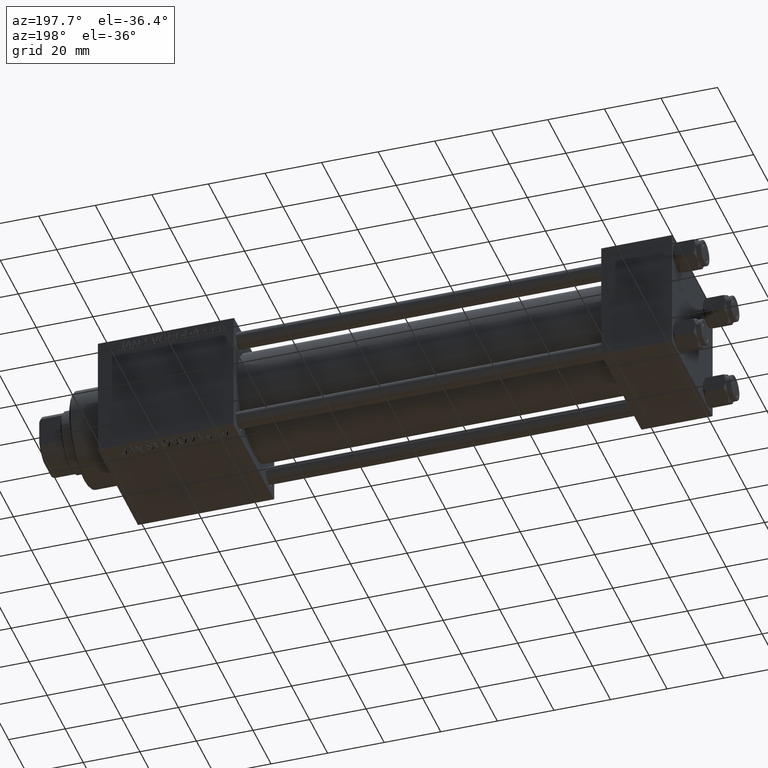
[diagram: clean part render]
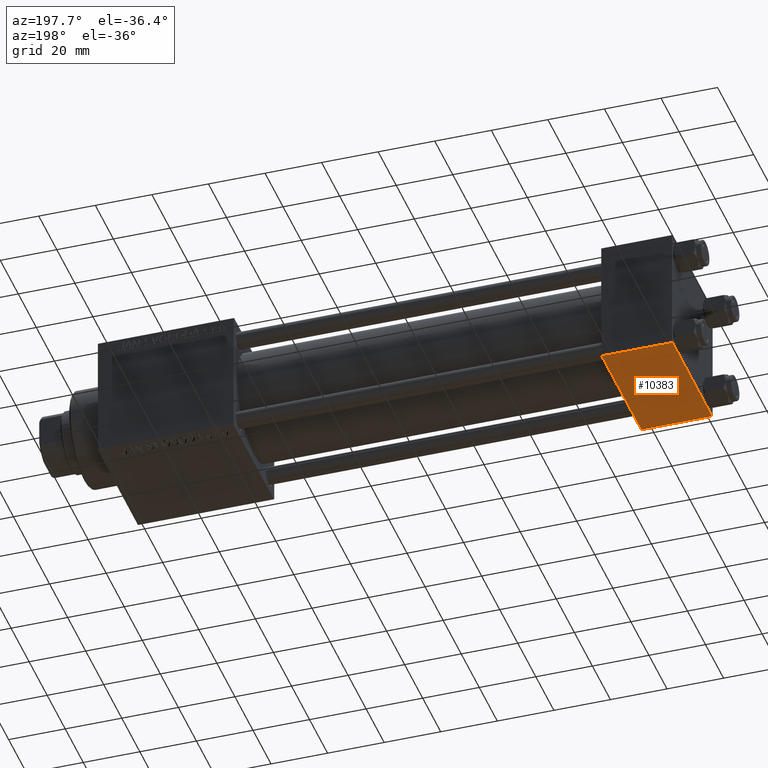
[diagram: same view with one face highlighted and labeled with its STEP entity id]
A machine part, auxiliary view. The second image highlights one B-rep face of the part: STEP entity #10383.
In plain terms, the highlighted planar face has unit normal (0, 0, -1).
Its self-contained STEP definition (entity closure, byte-faithful):
#753 = DIRECTION ( 'NONE',  ( 0.000000000000000000, -1.000000000000000000, -2.312964634635742957E-16 ) ) ;
#2235 = EDGE_CURVE ( 'NONE', #44824, #44484, #12623, .T. ) ;
#3479 = DIRECTION ( 'NONE',  ( 0.000000000000000000, 1.000000000000000000, 2.312964634635742957E-16 ) ) ;
#3900 = EDGE_LOOP ( 'NONE', ( #18043, #37149, #29256, #50309 ) ) ;
#4664 = CARTESIAN_POINT ( 'NONE',  ( 0.000000000000000000, -21.99999999999997158, -22.50000000000000711 ) ) ;
#7548 = PLANE ( 'NONE',  #9972 ) ;
#7982 = VECTOR ( 'NONE', #38784, 1000.000000000000000 ) ;
#8964 = VERTEX_POINT ( 'NONE', #9728 ) ;
#9464 = VECTOR ( 'NONE', #13388, 1000.000000000000000 ) ;
#9728 = CARTESIAN_POINT ( 'NONE',  ( 0.000000000000000000, 21.99999999999999289, -22.49999999999999645 ) ) ;
#9804 = CARTESIAN_POINT ( 'NONE',  ( 0.000000000000000000, 22.50000000000000000, -22.49999999999999645 ) ) ;
#9972 = AXIS2_PLACEMENT_3D ( 'NONE', #45984, #11109, #3479 ) ;
#10057 = LINE ( 'NONE', #21758, #7982 ) ;
#10383 = ADVANCED_FACE ( 'NONE', ( #15455 ), #7548, .T. ) ;
#11109 = DIRECTION ( 'NONE',  ( 0.000000000000000000, 2.312964634635742957E-16, -1.000000000000000000 ) ) ;
#12623 = LINE ( 'NONE', #20249, #38361 ) ;
#13388 = DIRECTION ( 'NONE',  ( 0.000000000000000000, -1.000000000000000000, -2.312964634635742957E-16 ) ) ;
#15455 = FACE_OUTER_BOUND ( 'NONE', #3900, .T. ) ;
#18043 = ORIENTED_EDGE ( 'NONE', *, *, #24363, .F. ) ;
#18742 = EDGE_CURVE ( 'NONE', #18788, #44824, #48082, .T. ) ;
#18788 = VERTEX_POINT ( 'NONE', #20087 ) ;
#20087 = CARTESIAN_POINT ( 'NONE',  ( 25.00000000000000000, 21.99999999999999289, -22.49999999999999645 ) ) ;
#20249 = CARTESIAN_POINT ( 'NONE',  ( 0.000000000000000000, -21.99999999999998579, -22.50000000000000711 ) ) ;
#20662 = VECTOR ( 'NONE', #753, 1000.000000000000000 ) ;
#21758 = CARTESIAN_POINT ( 'NONE',  ( 25.00000000000000000, 21.99999999999999289, -22.49999999999999645 ) ) ;
#24363 = EDGE_CURVE ( 'NONE', #8964, #44484, #48251, .T. ) ;
#29256 = ORIENTED_EDGE ( 'NONE', *, *, #18742, .T. ) ;
#37149 = ORIENTED_EDGE ( 'NONE', *, *, #45223, .T. ) ;
#38361 = VECTOR ( 'NONE', #43153, 1000.000000000000000 ) ;
#38784 = DIRECTION ( 'NONE',  ( 1.000000000000000000, 0.000000000000000000, 0.000000000000000000 ) ) ;
#41667 = CARTESIAN_POINT ( 'NONE',  ( 25.00000000000000000, -21.99999999999997158, -22.50000000000000711 ) ) ;
#43153 = DIRECTION ( 'NONE',  ( -1.000000000000000000, 0.000000000000000000, 0.000000000000000000 ) ) ;
#44484 = VERTEX_POINT ( 'NONE', #4664 ) ;
#44824 = VERTEX_POINT ( 'NONE', #41667 ) ;
#45223 = EDGE_CURVE ( 'NONE', #8964, #18788, #10057, .T. ) ;
#45984 = CARTESIAN_POINT ( 'NONE',  ( 25.00000000000000000, 22.50000000000000000, -22.49999999999999645 ) ) ;
#47071 = CARTESIAN_POINT ( 'NONE',  ( 25.00000000000000000, 22.50000000000000000, -22.49999999999999645 ) ) ;
#48082 = LINE ( 'NONE', #47071, #20662 ) ;
#48251 = LINE ( 'NONE', #9804, #9464 ) ;
#50309 = ORIENTED_EDGE ( 'NONE', *, *, #2235, .T. ) ;